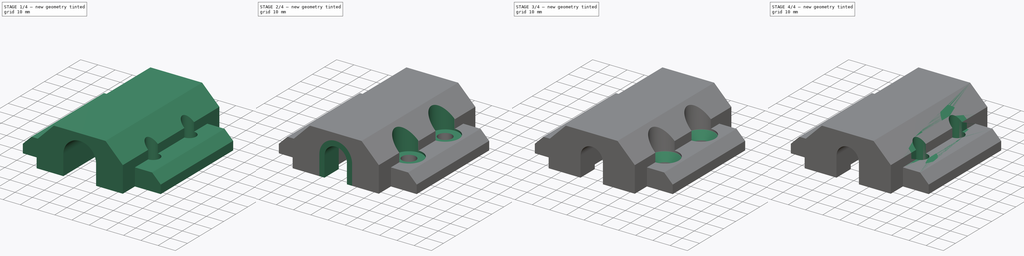
[diagram: build sequence overview — one tinted view per stage of 4, left to right]
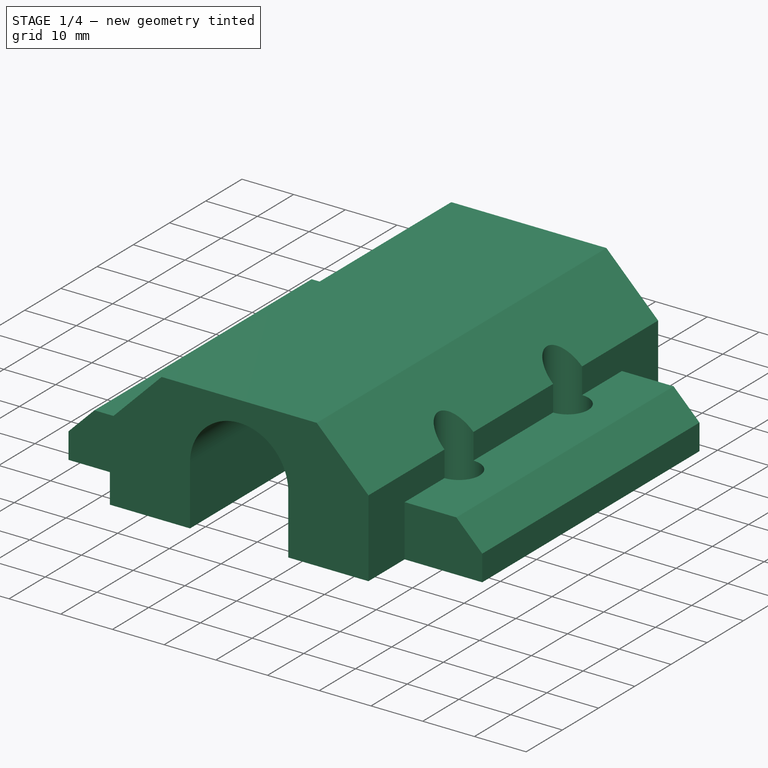
[diagram: stage 1 of 4 — iso view after this stage's code; geometry added in this stage tinted green]
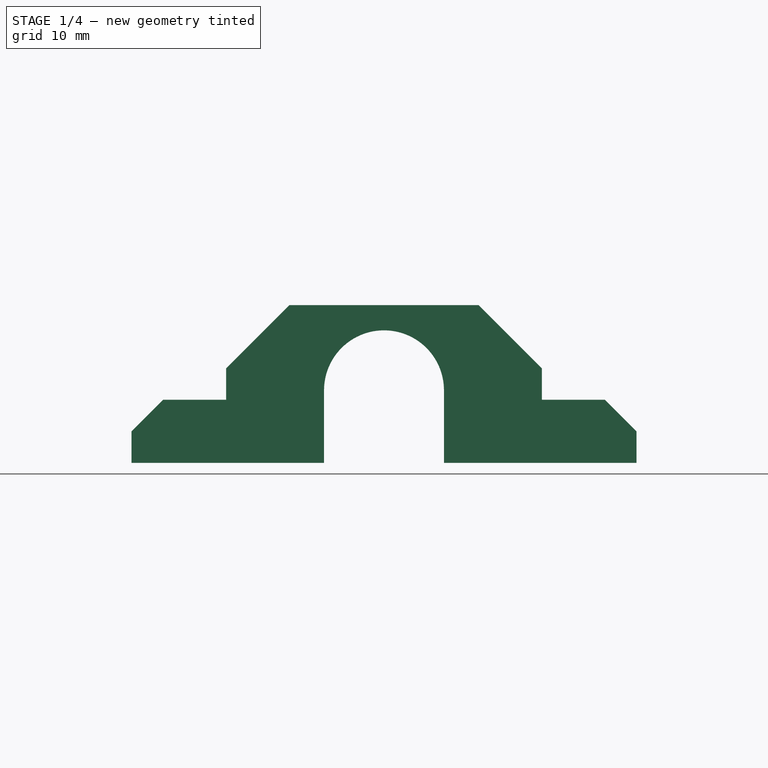
[diagram: stage 1 of 4 — front view after this stage's code; geometry added in this stage tinted green]
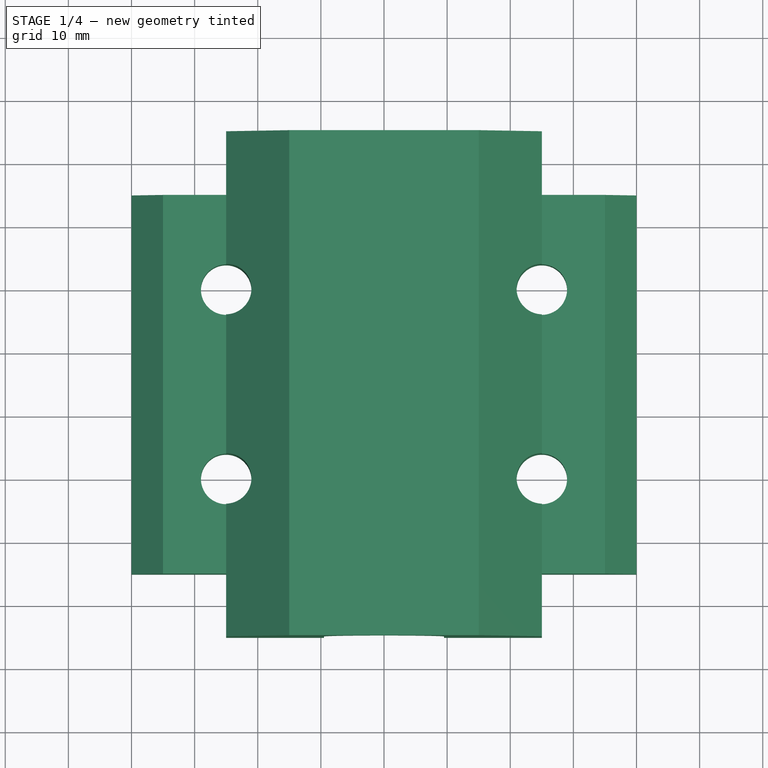
[diagram: stage 1 of 4 — top view after this stage's code; geometry added in this stage tinted green]
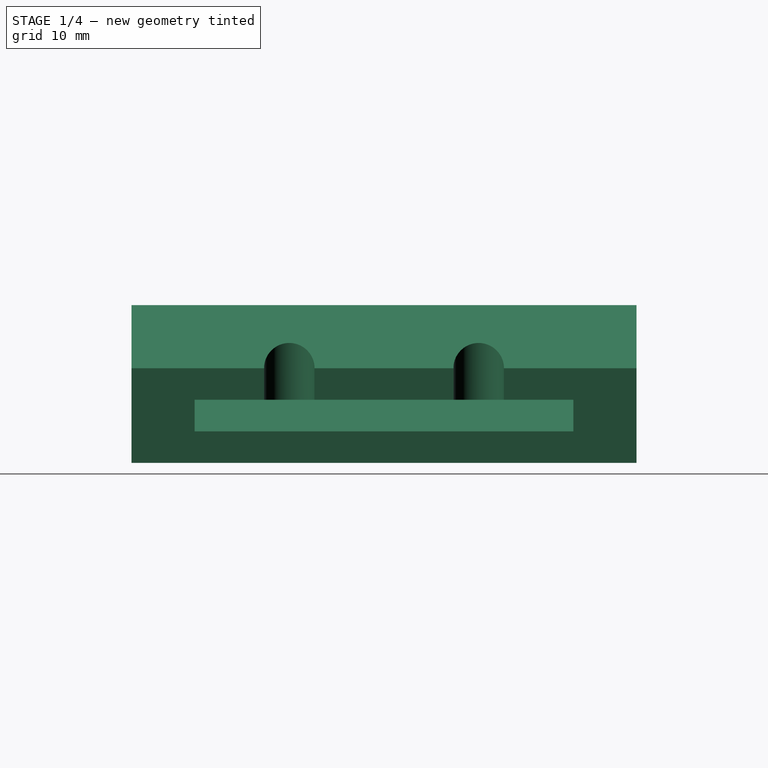
[diagram: stage 1 of 4 — right view after this stage's code; geometry added in this stage tinted green]
FCSTD DOCUMENT  (FreeCAD 0.16R6712 (Git))
Label: TestRig_bearing-housing
License: All rights reserved
LicenseURL: http://en.wikipedia.org/wiki/All_rights_reserved
objects: Sketcher::SketchObject×6, PartDesign::Chamfer×4, PartDesign::Pad×3, PartDesign::Pocket×2, PartDesign::LinearPattern×1
note: 21 computed .brp shape members not serialized (recipe doc carries the construction recipe); baked Part::Feature solids carry a one-line shape summary decoded from their .brp

FEATURE [Sketcher::SketchObject] Sketch
  sketch-geometry (34):
    g0: LineSegment StartX=40 StartY=15 StartZ=0 EndX=40 EndY=-15 EndZ=0
    g1: LineSegment [constr] StartX=40 StartY=-15 StartZ=0 EndX=-40 EndY=-15 EndZ=0
    g2: LineSegment StartX=-40 StartY=-15 StartZ=0 EndX=-40 EndY=15 EndZ=0
    g3: GeomPoint [constr] X=40 Y=0 Z=0
    g4: LineSegment [constr] StartX=9.5 StartY=13.3 StartZ=0 EndX=9.5 EndY=-15 EndZ=0
    g5: LineSegment [constr] StartX=9.5 StartY=-15 StartZ=0 EndX=-9.5 EndY=-15 EndZ=0
    g6: LineSegment [constr] StartX=-9.5 StartY=-15 StartZ=0 EndX=-9.5 EndY=13.3 EndZ=0
    g7: Circle [constr] CenterX=25 CenterY=0 CenterZ=0 NormalX=0 NormalY=0 NormalZ=1 Radius=8
    g8: Circle [constr] CenterX=-25 CenterY=0 CenterZ=0 NormalX=0 NormalY=0 NormalZ=1 Radius=8
    g9: GeomPoint [constr] X=33 Y=0 Z=0
    g10: Circle CenterX=-25 CenterY=0 CenterZ=0 NormalX=0 NormalY=0 NormalZ=1 Radius=4
    g11: Circle CenterX=25 CenterY=0 CenterZ=0 NormalX=0 NormalY=0 NormalZ=1 Radius=4
    g12: GeomPoint [constr] X=-25 Y=0 Z=0
    g13: LineSegment [constr] StartX=-9.5 StartY=13.3 StartZ=0 EndX=9.5 EndY=13.3 EndZ=0
    g14: LineSegment StartX=-40 StartY=15 StartZ=0 EndX=-25 EndY=15 EndZ=0
    g15: LineSegment StartX=-25 StartY=15 StartZ=0 EndX=-25 EndY=25 EndZ=0
    g16: LineSegment StartX=-25 StartY=25 StartZ=0 EndX=25 EndY=25 EndZ=0
    g17: LineSegment StartX=25 StartY=25 StartZ=0 EndX=25 EndY=15 EndZ=0
    g18: LineSegment StartX=25 StartY=15 StartZ=0 EndX=40 EndY=15 EndZ=0
    g19: GeomPoint [constr] X=0 Y=-15 Z=0
    g20: GeomPoint [constr] X=0 Y=25 Z=0
    g21: LineSegment StartX=-40 StartY=-15 StartZ=0 EndX=-40 EndY=-45 EndZ=0
    g22: LineSegment StartX=-40 StartY=-45 StartZ=0 EndX=-25 EndY=-45 EndZ=0
    g23: LineSegment StartX=-25 StartY=-45 StartZ=0 EndX=-25 EndY=-55 EndZ=0
    g24: LineSegment StartX=-25 StartY=-55 StartZ=0 EndX=25 EndY=-55 EndZ=0
    g25: LineSegment StartX=25 StartY=-55 StartZ=0 EndX=25 EndY=-45 EndZ=0
    g26: LineSegment StartX=25 StartY=-45 StartZ=0 EndX=40 EndY=-45 EndZ=0
    g27: LineSegment StartX=40 StartY=-45 StartZ=0 EndX=40 EndY=-15 EndZ=0
    g28: LineSegment [constr] StartX=25 StartY=0 StartZ=0 EndX=-25 EndY=0 EndZ=0
    g29: LineSegment [constr] StartX=-25 StartY=0 StartZ=0 EndX=-25 EndY=-30 EndZ=0
    g30: LineSegment [constr] StartX=-25 StartY=-30 StartZ=0 EndX=25 EndY=-30 EndZ=0
    g31: LineSegment [constr] StartX=25 StartY=-30 StartZ=0 EndX=25 EndY=0 EndZ=0
    g32: Circle CenterX=-25 CenterY=-30 CenterZ=0 NormalX=0 NormalY=0 NormalZ=1 Radius=4
    g33: Circle CenterX=25 CenterY=-30 CenterZ=0 NormalX=0 NormalY=0 NormalZ=1 Radius=4
  constraints (90):
    c: Coincident(g0,g1)
    c: Coincident(g1,g2)
    c: Horizontal(g1)
    c: Vertical(g0)
    c: Vertical(g2)
    c: PointOnObject(g3,g0)
    c: Symmetric(g0,g0,g3)
    c: PointOnObject(g3,g-1)
    c: DistanceX(g2,g0) = 80
    c: DistanceY(g0,g0) = 30
    c: Coincident(g5,g6)
    c: Horizontal(g5)
    c: Vertical(g4)
    c: Vertical(g6)
    c: DistanceX(g6,g4) = 19
    c: PointOnObject(g7,g-1)
    c: PointOnObject(g8,g-1)
    c: Radius(g7) = 8
    c: Equal(g8,g7)
    c: PointOnObject(g9,g7)
    c: PointOnObject(g9,g-1)
    c: DistanceX(g9,g3) = 7
    c: Symmetric(g7,g8,g-1)
    c: Coincident(g10,g8)
    c: Coincident(g11,g7)
    c: Radius(g11) = 4
    c: Equal(g11,g10)
    c: Coincident(g12,g8)
    c: Coincident(g5,g4)
    c: Coincident(g13,g6)
    c: Coincident(g13,g4)
    c: Horizontal(g13)
    c: Horizontal(g14)
    c: Coincident(g14,g15)
    c: Vertical(g15)
    c: Coincident(g15,g16)
    c: Horizontal(g16)
    c: Coincident(g16,g17)
    c: Coincident(g17,g18)
    c: Horizontal(g18)
    c: Vertical(g17)
    c: DistanceX(g16,g16) = 50
    c: Coincident(g0,g18)
    c: PointOnObject(g19,g5)
    c: Symmetric(g5,g4,g19)
    c: PointOnObject(g19,g-2)
    c: PointOnObject(g20,g16)
    c: Symmetric(g15,g16,g20)
    c: PointOnObject(g20,g-2)
    c: DistanceY(g4,g4) = 28.3
    c: PointOnObject(g19,g1)
    c: DistanceY(g17,g17) = 10
    c: Coincident(g14,g2)
    c: Equal(g15,g17)
    c: Equal(g18,g14)
    c: Coincident(g1,g21)
    c: Vertical(g21)
    c: Coincident(g21,g22)
    c: Horizontal(g22)
    c: Coincident(g22,g23)
    c: Vertical(g23)
    c: Coincident(g23,g24)
    c: Horizontal(g24)
    c: Coincident(g24,g25)
    c: Vertical(g25)
    c: Coincident(g25,g26)
    c: Horizontal(g26)
    c: Coincident(g26,g27)
    c: Coincident(g27,g0)
    c: Vertical(g27)
    c: DistanceY(g27,g27) = 30
    c: Equal(g17,g25)
    c: Equal(g22,g14)
    c: Equal(g23,g15)
    c: Equal(g24,g16)
    c: Coincident(g28,g29)
    c: Coincident(g29,g30)
    c: Coincident(g30,g31)
    c: Coincident(g31,g28)
    c: Horizontal(g28)
    c: Horizontal(g30)
    c: Vertical(g29)
    c: Vertical(g31)
    c: Coincident(g28,g7)
    c: Coincident(g8,g28)
    c: Coincident(g32,g29)
    c: Coincident(g33,g30)
    c: Equal(g33,g11)
    c: Equal(g11,g32)
    c: DistanceY(g29,g29) = 30
FEATURE [PartDesign::Pad] Pad
  Length = 25
  Length2 = 100
  Sketch = -> Sketch
  Type = 0
FEATURE [Sketcher::SketchObject] Sketch001
  ExternalGeometry = -> [Pad]
  Placement = pos=(0,15,0) rot=(0,0.707107,0.707107;3.14159rad)
  Support = -> Pad [Face2]
  sketch-geometry (17):
    g0: ArcOfCircle CenterX=0 CenterY=11.5 CenterZ=0 NormalX=0 NormalY=0 NormalZ=1 Radius=9.5 StartAngle=6.28319 EndAngle=9.42478
    g1: LineSegment StartX=-9.5 StartY=11.5 StartZ=0 EndX=-9.5 EndY=0 EndZ=0
    g2: LineSegment StartX=-40 StartY=5 StartZ=0 EndX=-35 EndY=10 EndZ=0
    g3: LineSegment StartX=-35 StartY=10 StartZ=0 EndX=-25 EndY=10 EndZ=0
    g4: LineSegment StartX=-25 StartY=10 StartZ=0 EndX=-25 EndY=15 EndZ=0
    g5: LineSegment StartX=-25 StartY=15 StartZ=0 EndX=-15 EndY=25 EndZ=0
    g6: LineSegment StartX=-40 StartY=5 StartZ=0 EndX=-40 EndY=25 EndZ=0
    g7: LineSegment StartX=-40 StartY=25 StartZ=0 EndX=-15 EndY=25 EndZ=0
    g8: LineSegment StartX=-9.5 StartY=0 StartZ=0 EndX=0 EndY=0 EndZ=0
    g9: LineSegment StartX=0 StartY=0 StartZ=0 EndX=9.5 EndY=0 EndZ=0
    g10: LineSegment StartX=9.5 StartY=0 StartZ=0 EndX=9.5 EndY=11.5 EndZ=0
    g11: LineSegment StartX=40 StartY=5 StartZ=0 EndX=35 EndY=10 EndZ=0
    g12: LineSegment StartX=35 StartY=10 StartZ=0 EndX=25 EndY=10 EndZ=0
    g13: LineSegment StartX=25 StartY=10 StartZ=0 EndX=25 EndY=15 EndZ=0
    g14: LineSegment StartX=25 StartY=15 StartZ=0 EndX=15 EndY=25 EndZ=0
    g15: LineSegment StartX=40 StartY=5 StartZ=0 EndX=40 EndY=25 EndZ=0
    g16: LineSegment StartX=40 StartY=25 StartZ=0 EndX=15 EndY=25 EndZ=0
  constraints (51):
    c: PointOnObject(g0,g-2)
    c: Radius(g0) = 9.5
    c: PointOnObject(g1,g-1)
    c: Tangent(g1,g0)
    c: Vertical(g1)
    c: Coincident(g0,g1)
    c: Coincident(g2,g3)
    c: Horizontal(g3)
    c: Vertical(g4)
    c: Coincident(g4,g5)
    c: DistanceX(g2,g2) = 5
    c: DistanceY(g2,g2) = 5
    c: DistanceY(g-3,g2) = 5
    c: DistanceX(g2,g5) = 20
    c: Coincident(g6,g2)
    c: Vertical(g6)
    c: Coincident(g7,g6)
    c: Coincident(g7,g5)
    c: Coincident(g8,g1)
    c: Coincident(g8,g-1)
    c: DistanceY(g6,g6) = 20
    c: Horizontal(g7)
    c: DistanceX(g2,g4) = 10
    c: Coincident(g3,g4)
    c: DistanceY(g-1,g0) = 11.5
    c: Coincident(g9,g-1)
    c: Horizontal(g9)
    c: Coincident(g10,g9)
    c: Vertical(g10)
    c: Coincident(g10,g0)
    c: DistanceX(g6,g-1) = 40
    c: Equal(g10,g1)
    c: Angle(g5) = 0.785398
    c: Coincident(g11,g12)
    c: Horizontal(g12)
    c: Vertical(g13)
    c: Coincident(g13,g14)
    c: Coincident(g15,g11)
    c: Vertical(g15)
    c: Coincident(g16,g15)
    c: Coincident(g16,g14)
    c: Horizontal(g16)
    c: Coincident(g12,g13)
    c: Angle(g14) = 2.35619
    c: DistanceX(g12,g12) = 10
    c: DistanceY(g15,g15) = 20
    c: DistanceX(g14,g11) = 20
    c: DistanceY(g11,g11) = 5
    c: DistanceX(g11,g11) = 5
    c: DistanceY(g-1,g11) = 5
    c: DistanceX(g-1,g11) = 40
FEATURE [PartDesign::Pocket] Pocket
  Length = 5
  Midplane = true
  Sketch = -> Sketch001
  Type = 1
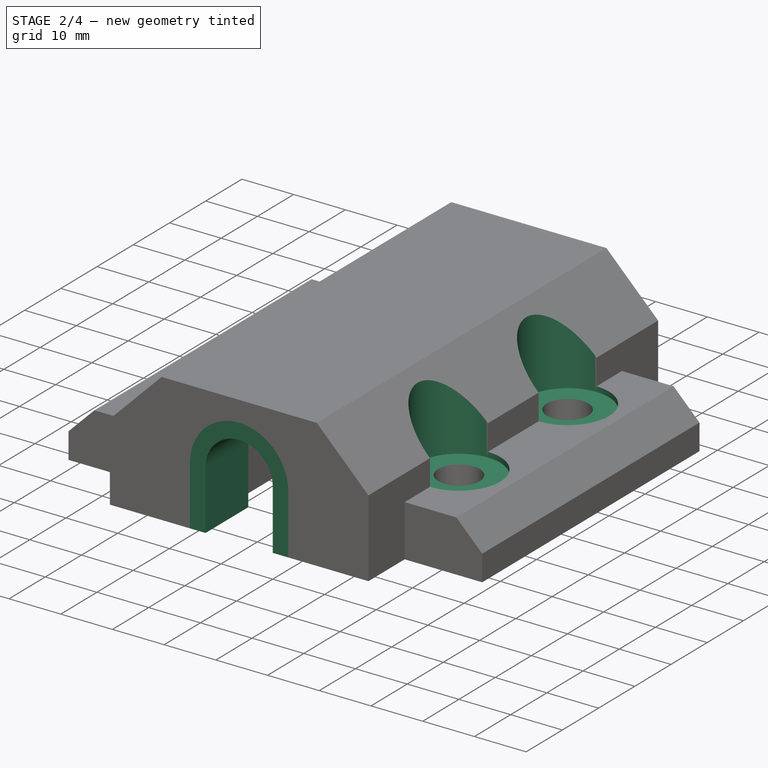
[diagram: stage 2 of 4 — iso view after this stage's code; geometry added in this stage tinted green]
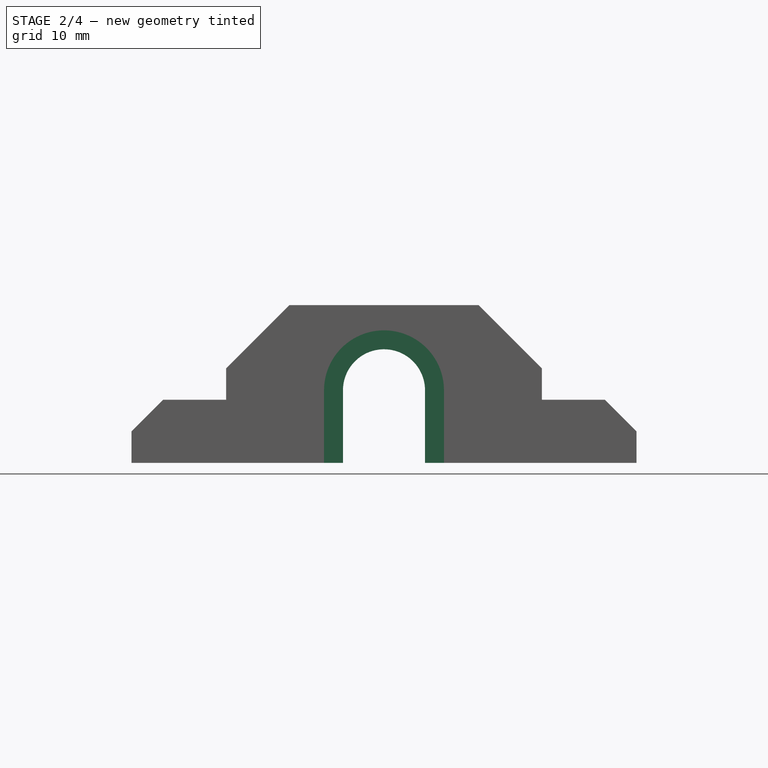
[diagram: stage 2 of 4 — front view after this stage's code; geometry added in this stage tinted green]
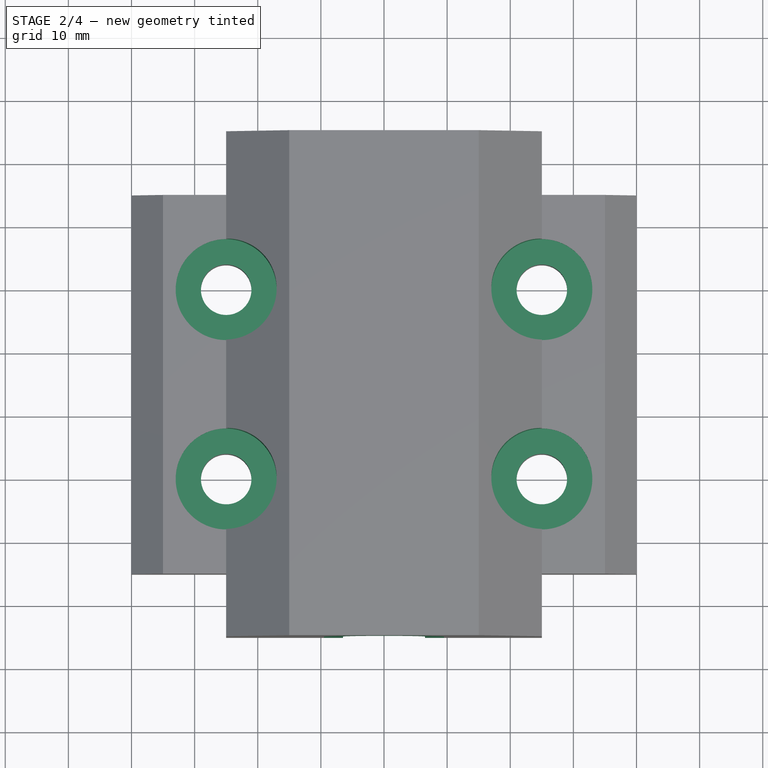
[diagram: stage 2 of 4 — top view after this stage's code; geometry added in this stage tinted green]
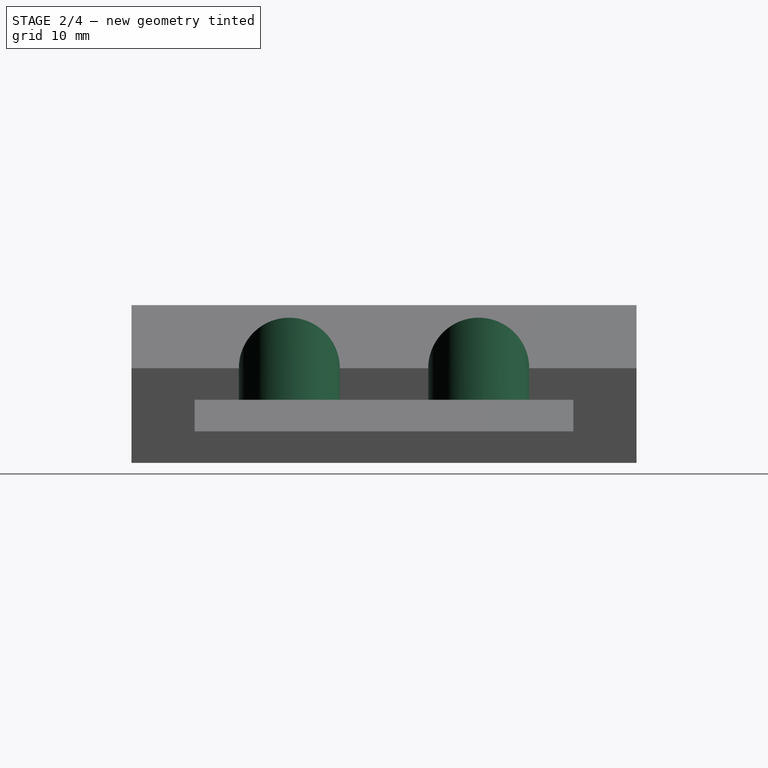
[diagram: stage 2 of 4 — right view after this stage's code; geometry added in this stage tinted green]
FEATURE [Sketcher::SketchObject] Sketch003
  ExternalGeometry = -> [Pocket]
  Placement = pos=(0,0,25) rot=(0,0,1;0rad)
  Support = -> Pocket [Face22]
  sketch-geometry (8):
    g0: LineSegment [constr] StartX=-25 StartY=-30 StartZ=0 EndX=25 EndY=-30 EndZ=0
    g1: LineSegment [constr] StartX=25 StartY=-30 StartZ=0 EndX=25 EndY=0 EndZ=0
    g2: LineSegment [constr] StartX=25 StartY=0 StartZ=0 EndX=-25 EndY=0 EndZ=0
    g3: LineSegment [constr] StartX=-25 StartY=0 StartZ=0 EndX=-25 EndY=-30 EndZ=0
    g4: Circle CenterX=-25 CenterY=0 CenterZ=0 NormalX=0 NormalY=0 NormalZ=1 Radius=8
    g5: Circle CenterX=25 CenterY=0 CenterZ=0 NormalX=0 NormalY=0 NormalZ=1 Radius=8
    g6: Circle CenterX=25 CenterY=-30 CenterZ=0 NormalX=0 NormalY=0 NormalZ=1 Radius=8
    g7: Circle CenterX=-25 CenterY=-30 CenterZ=0 NormalX=0 NormalY=0 NormalZ=1 Radius=8
  constraints (18):
    c: Coincident(g0,g1)
    c: Coincident(g1,g2)
    c: Coincident(g2,g3)
    c: Coincident(g3,g0)
    c: Horizontal(g0)
    c: Horizontal(g2)
    c: Vertical(g1)
    c: Vertical(g3)
    c: Coincident(g0,g-4)
    c: Coincident(g1,g-3)
    c: Coincident(g4,g2)
    c: Coincident(g5,g1)
    c: Coincident(g6,g0)
    c: Coincident(g7,g0)
    c: Radius(g5) = 8
    c: Equal(g6,g7)
    c: Equal(g7,g4)
    c: Equal(g4,g5)
FEATURE [PartDesign::Pocket] Pocket001
  Length = 16
  Sketch = -> Sketch003
  Type = 0
FEATURE [Sketcher::SketchObject] Sketch004
  Placement = pos=(0,-55,0) rot=(1,0,0;1.5708rad)
  Support = -> Pocket001 [Face9]
  sketch-geometry (12):
    g0: LineSegment StartX=-9.5 StartY=0 StartZ=0 EndX=-6.5 EndY=0 EndZ=0
    g1: LineSegment StartX=-6.5 StartY=0 StartZ=0 EndX=-6.5 EndY=11.5 EndZ=0
    g2: LineSegment [constr] StartX=-6.5 StartY=11.5 StartZ=0 EndX=-9.5 EndY=11.5 EndZ=0
    g3: LineSegment StartX=-9.5 StartY=11.5 StartZ=0 EndX=-9.5 EndY=0 EndZ=0
    g4: LineSegment [constr] StartX=-6.5 StartY=11.5 StartZ=0 EndX=0 EndY=11.5 EndZ=0
    g5: LineSegment [constr] StartX=0 StartY=11.5 StartZ=0 EndX=6.5 EndY=11.5 EndZ=0
    g6: ArcOfCircle CenterX=0 CenterY=11.5 CenterZ=0 NormalX=0 NormalY=0 NormalZ=1 Radius=6.5 StartAngle=0 EndAngle=3.14159
    g7: LineSegment [constr] StartX=6.5 StartY=11.5 StartZ=0 EndX=9.5 EndY=11.5 EndZ=0
    g8: LineSegment StartX=9.5 StartY=11.5 StartZ=0 EndX=9.5 EndY=0 EndZ=0
    g9: LineSegment StartX=9.5 StartY=0 StartZ=0 EndX=6.5 EndY=0 EndZ=0
    g10: LineSegment StartX=6.5 StartY=0 StartZ=0 EndX=6.5 EndY=11.5 EndZ=0
    g11: ArcOfCircle CenterX=0 CenterY=11.5 CenterZ=0 NormalX=0 NormalY=0 NormalZ=1 Radius=9.5 StartAngle=0 EndAngle=3.14159
  constraints (34):
    c: Coincident(g0,g1)
    c: Coincident(g1,g2)
    c: Coincident(g2,g3)
    c: Coincident(g3,g0)
    c: Horizontal(g0)
    c: Horizontal(g2)
    c: Vertical(g1)
    c: Vertical(g3)
    c: PointOnObject(g0,g-1)
    c: DistanceY(g3,g3) = 11.5
    c: DistanceX(g0,g0) = 3
    c: DistanceX(g0,g-1) = 9.5
    c: Coincident(g4,g1)
    c: Horizontal(g4)
    c: PointOnObject(g4,g-2)
    c: Coincident(g5,g4)
    c: Horizontal(g5)
    c: Coincident(g6,g4)
    c: Coincident(g6,g1)
    c: Coincident(g6,g5)
    c: Coincident(g7,g8)
    c: Coincident(g8,g9)
    c: Coincident(g9,g10)
    c: Coincident(g10,g7)
    c: Horizontal(g7)
    c: Horizontal(g9)
    c: Vertical(g8)
    c: Vertical(g10)
    c: PointOnObject(g8,g-1)
    c: DistanceX(g9,g9) = 3
    c: Coincident(g7,g5)
    c: Coincident(g11,g4)
    c: Coincident(g11,g2)
    c: Coincident(g11,g7)
FEATURE [PartDesign::Pad] Pad002
  Length = 11.78
  Length2 = 100
  Reversed = true
  Sketch = -> Sketch004
  Type = 0
FEATURE [Sketcher::SketchObject] Sketch005
  Placement = pos=(0,-55,0) rot=(1,0,0;1.5708rad)
  Support = -> Pad002 [Face10]
  sketch-geometry (11):
    g0: LineSegment StartX=-6.5 StartY=0 StartZ=0 EndX=-9.5 EndY=0 EndZ=0
    g1: LineSegment StartX=-9.5 StartY=0 StartZ=0 EndX=-9.5 EndY=11.5 EndZ=0
    g2: LineSegment [constr] StartX=-9.5 StartY=11.5 StartZ=0 EndX=-6.5 EndY=11.5 EndZ=0
    g3: LineSegment StartX=-6.5 StartY=11.5 StartZ=0 EndX=-6.5 EndY=0 EndZ=0
    g4: LineSegment StartX=6.5 StartY=0 StartZ=0 EndX=9.5 EndY=0 EndZ=0
    g5: LineSegment StartX=9.5 StartY=0 StartZ=0 EndX=9.5 EndY=11.5 EndZ=0
    g6: LineSegment [constr] StartX=9.5 StartY=11.5 StartZ=0 EndX=6.5 EndY=11.5 EndZ=0
    g7: LineSegment StartX=6.5 StartY=11.5 StartZ=0 EndX=6.5 EndY=0 EndZ=0
    g8: LineSegment [constr] StartX=-6.5 StartY=11.5 StartZ=0 EndX=0 EndY=11.5 EndZ=0
    g9: ArcOfCircle CenterX=0 CenterY=11.5 CenterZ=0 NormalX=0 NormalY=0 NormalZ=1 Radius=9.5 StartAngle=0 EndAngle=3.14994
    g10: ArcOfCircle CenterX=0 CenterY=11.5 CenterZ=0 NormalX=0 NormalY=0 NormalZ=1 Radius=6.5 StartAngle=0 EndAngle=3.14159
  constraints (31):
    c: Coincident(g0,g1)
    c: Coincident(g1,g2)
    c: Coincident(g2,g3)
    c: Coincident(g3,g0)
    c: Horizontal(g0)
    c: Horizontal(g2)
    c: Vertical(g1)
    c: Vertical(g3)
    c: PointOnObject(g0,g-1)
    c: DistanceX(g0,g0) = 3
    c: DistanceY(g1,g1) = 11.5
    c: DistanceX(g0,g-1) = 9.5
    c: Coincident(g4,g5)
    c: Coincident(g5,g6)
    c: Coincident(g6,g7)
    c: Coincident(g7,g4)
    c: Horizontal(g4)
    c: Horizontal(g6)
    c: Vertical(g5)
    c: Vertical(g7)
    c: PointOnObject(g4,g-1)
    c: DistanceY(g5,g5) = 11.5
    c: DistanceX(g4,g4) = 3
    c: Coincident(g8,g2)
    c: PointOnObject(g8,g-2)
    c: Horizontal(g8)
    c: Coincident(g9,g8)
    c: Coincident(g9,g5)
    c: Coincident(g10,g8)
    c: Coincident(g10,g2)
    c: Coincident(g10,g6)
FEATURE [PartDesign::LinearPattern] LinearPattern
  Direction = -> Pad002 [Edge76]
  Length = 68.22
  Occurrences = 2
  Originals = -> [Pad002]
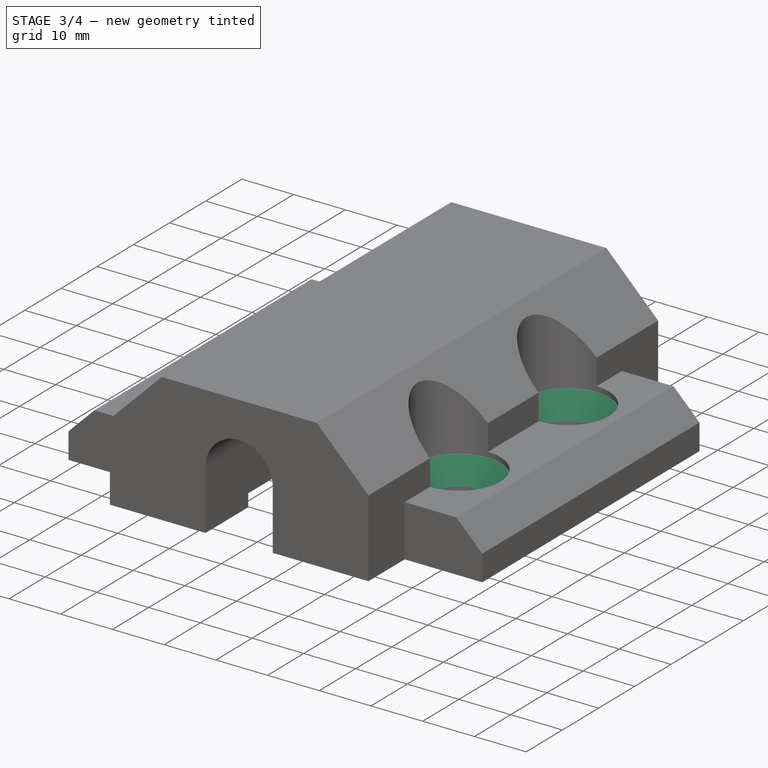
[diagram: stage 3 of 4 — iso view after this stage's code; geometry added in this stage tinted green]
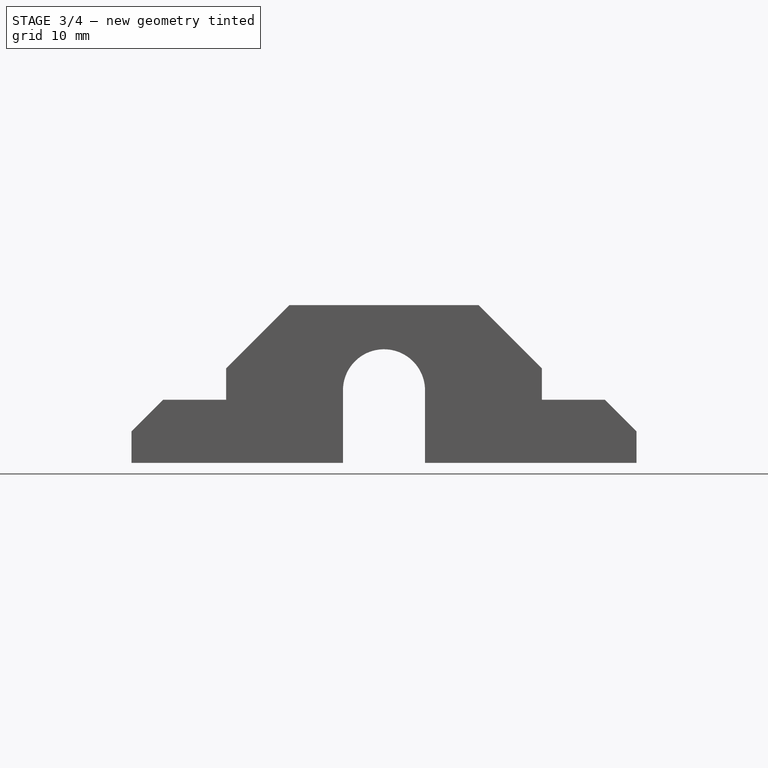
[diagram: stage 3 of 4 — front view after this stage's code; geometry added in this stage tinted green]
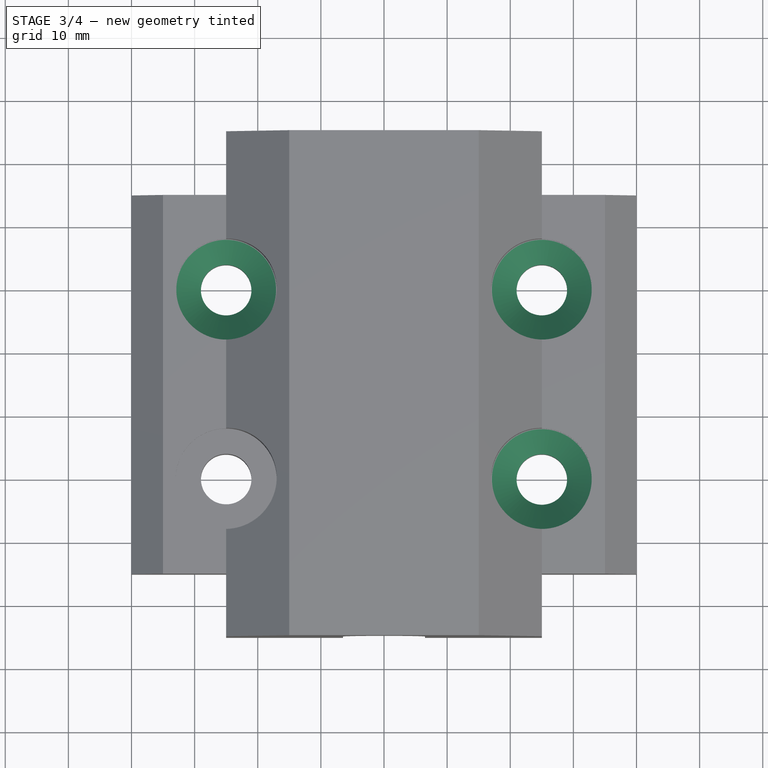
[diagram: stage 3 of 4 — top view after this stage's code; geometry added in this stage tinted green]
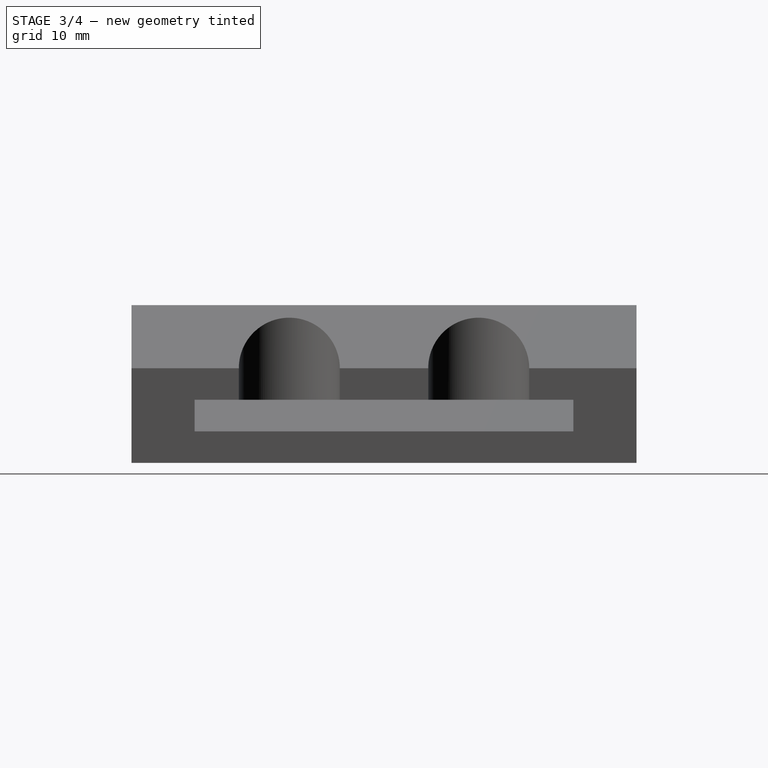
[diagram: stage 3 of 4 — right view after this stage's code; geometry added in this stage tinted green]
FEATURE [PartDesign::Chamfer] Chamfer
  Base = -> LinearPattern [Edge60]
  Size = 3.9
FEATURE [PartDesign::Chamfer] Chamfer001
  Base = -> Chamfer [Edge151]
  Size = 3.9
FEATURE [PartDesign::Chamfer] Chamfer002
  Base = -> Chamfer001 [Edge64]
  Size = 3.9
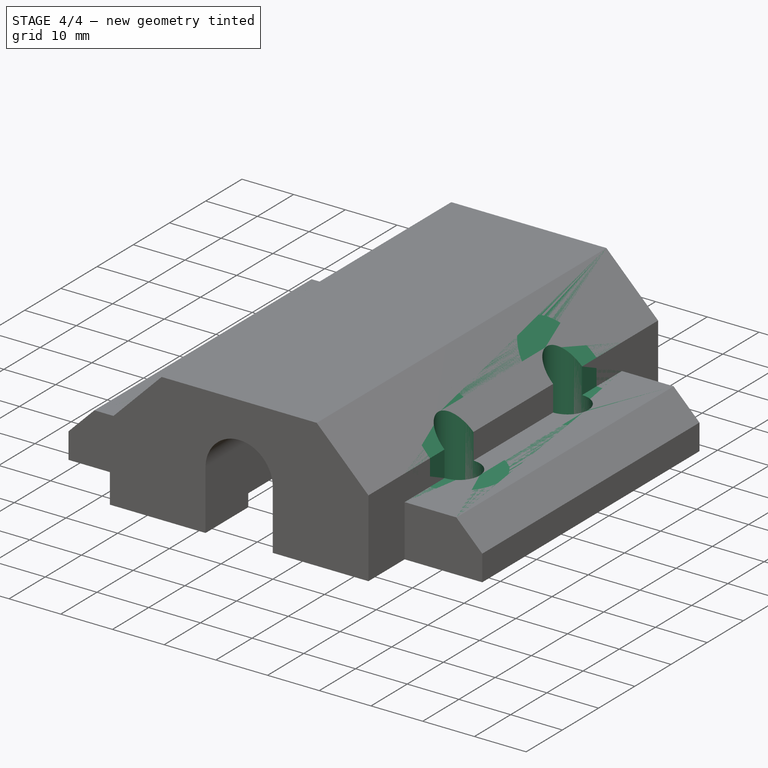
[diagram: stage 4 of 4 — iso view after this stage's code; geometry added in this stage tinted green]
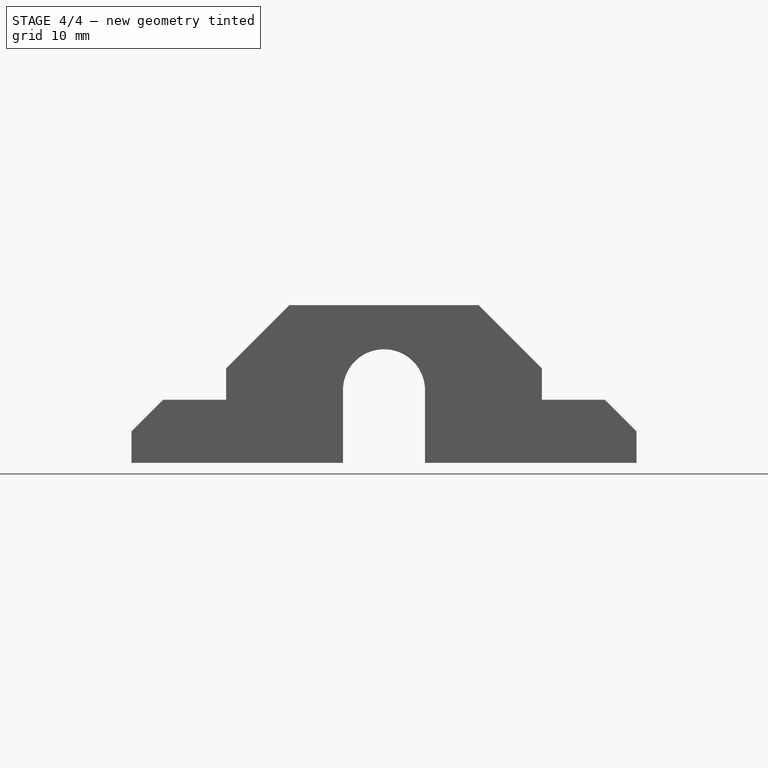
[diagram: stage 4 of 4 — front view after this stage's code; geometry added in this stage tinted green]
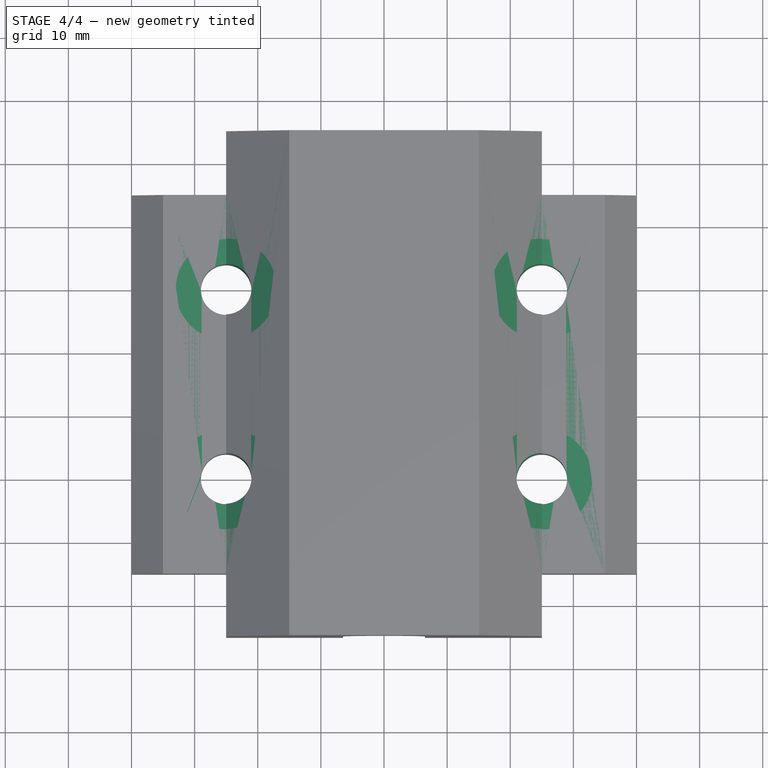
[diagram: stage 4 of 4 — top view after this stage's code; geometry added in this stage tinted green]
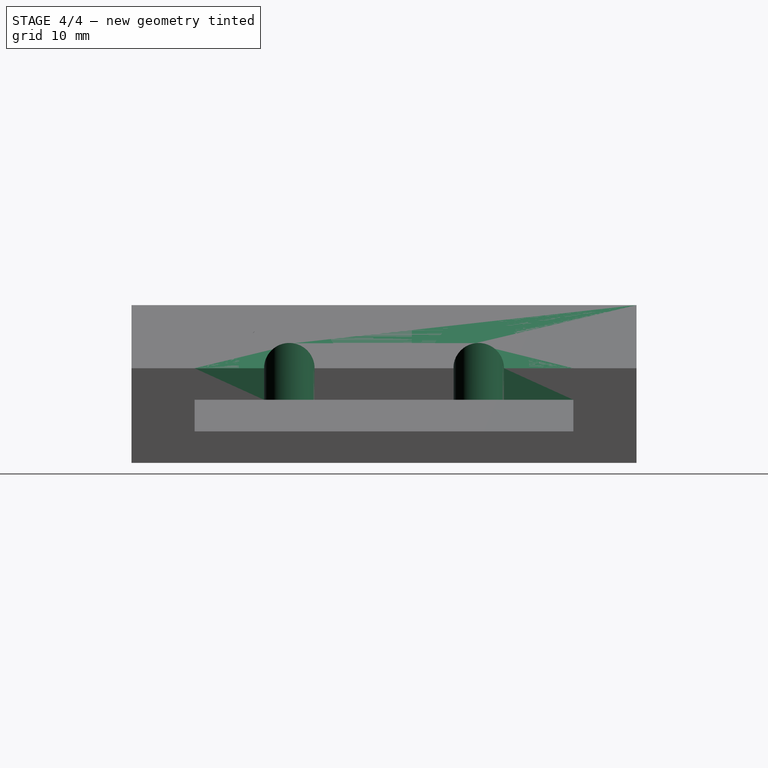
[diagram: stage 4 of 4 — right view after this stage's code; geometry added in this stage tinted green]
FEATURE [Sketcher::SketchObject] Sketch002
  Placement = pos=(0,25,0) rot=(0,0.707107,0.707107;3.14159rad)
  Support = -> Pocket [Face7]
  sketch-geometry (12):
    g0: LineSegment StartX=-9.5 StartY=0 StartZ=0 EndX=-6.5 EndY=0 EndZ=0
    g1: LineSegment StartX=-6.5 StartY=0 StartZ=0 EndX=-6.5 EndY=11.5 EndZ=0
    g2: LineSegment [constr] StartX=-6.5 StartY=11.5 StartZ=0 EndX=-9.5 EndY=11.5 EndZ=0
    g3: LineSegment StartX=-9.5 StartY=11.5 StartZ=0 EndX=-9.5 EndY=0 EndZ=0
    g4: LineSegment StartX=6.5 StartY=0 StartZ=0 EndX=9.5 EndY=0 EndZ=0
    g5: LineSegment StartX=9.5 StartY=0 StartZ=0 EndX=9.5 EndY=11.5 EndZ=0
    g6: LineSegment [constr] StartX=9.5 StartY=11.5 StartZ=0 EndX=6.5 EndY=11.5 EndZ=0
    g7: LineSegment StartX=6.5 StartY=11.5 StartZ=0 EndX=6.5 EndY=0 EndZ=0
    g8: LineSegment [constr] StartX=-6.5 StartY=11.5 StartZ=0 EndX=6.5 EndY=11.5 EndZ=0
    g9: GeomPoint [constr] X=0 Y=11.5 Z=0
    g10: ArcOfCircle CenterX=0 CenterY=11.5 CenterZ=0 NormalX=0 NormalY=0 NormalZ=1 Radius=6.5 StartAngle=0 EndAngle=3.14159
    g11: ArcOfCircle CenterX=0 CenterY=11.5 CenterZ=0 NormalX=0 NormalY=0 NormalZ=1 Radius=9.5 StartAngle=0 EndAngle=3.14159
  constraints (32):
    c: Coincident(g0,g1)
    c: Coincident(g1,g2)
    c: Coincident(g2,g3)
    c: Coincident(g3,g0)
    c: Horizontal(g0)
    c: Horizontal(g2)
    c: Vertical(g1)
    c: Vertical(g3)
    c: PointOnObject(g0,g-1)
    c: Coincident(g4,g5)
    c: Coincident(g5,g6)
    c: Coincident(g6,g7)
    c: Coincident(g7,g4)
    c: Horizontal(g4)
    c: Horizontal(g6)
    c: Vertical(g5)
    c: Vertical(g7)
    c: DistanceX(g0,g0) = 3
    c: DistanceX(g4,g4) = 3
    c: Symmetric(g0,g4,g-1)
    c: DistanceX(g0,g4) = 19
    c: Coincident(g8,g1)
    c: Horizontal(g8)
    c: Coincident(g8,g6)
    c: DistanceY(g3,g3) = 11.5
    c: PointOnObject(g9,g8)
    c: Coincident(g10,g9)
    c: Coincident(g10,g1)
    c: Coincident(g10,g6)
    c: Coincident(g11,g9)
    c: Coincident(g11,g2)
    c: Coincident(g11,g5)
FEATURE [PartDesign::Pad] Pad001
  Length = 11.78
  Length2 = 100
  Reversed = true
  Sketch = -> Sketch002
  Type = 0
FEATURE [PartDesign::Chamfer] Chamfer003
  Base = -> Chamfer002 [Edge153]
  Size = 3.9
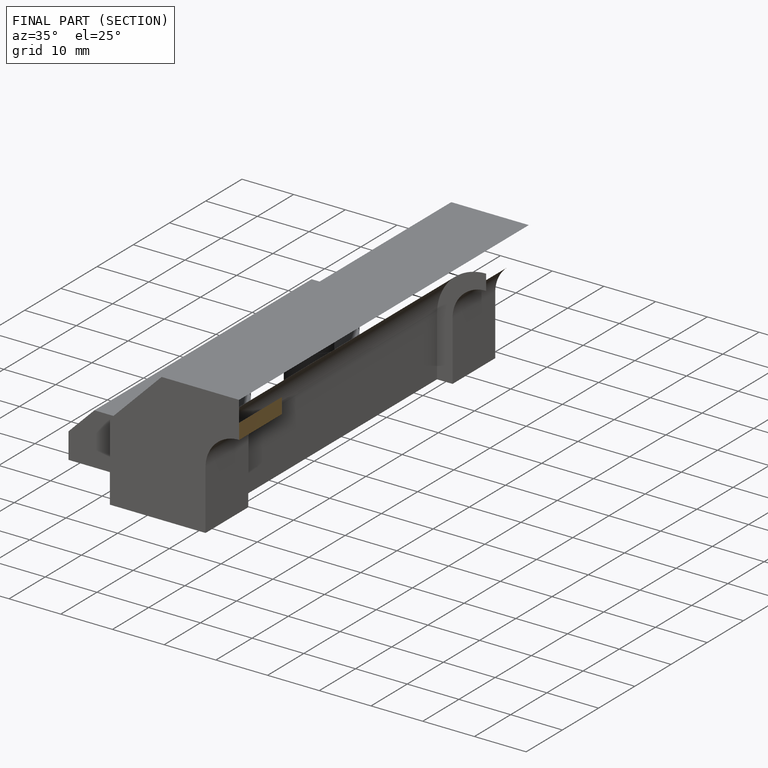
[diagram: finished part — half-section view (interior)]
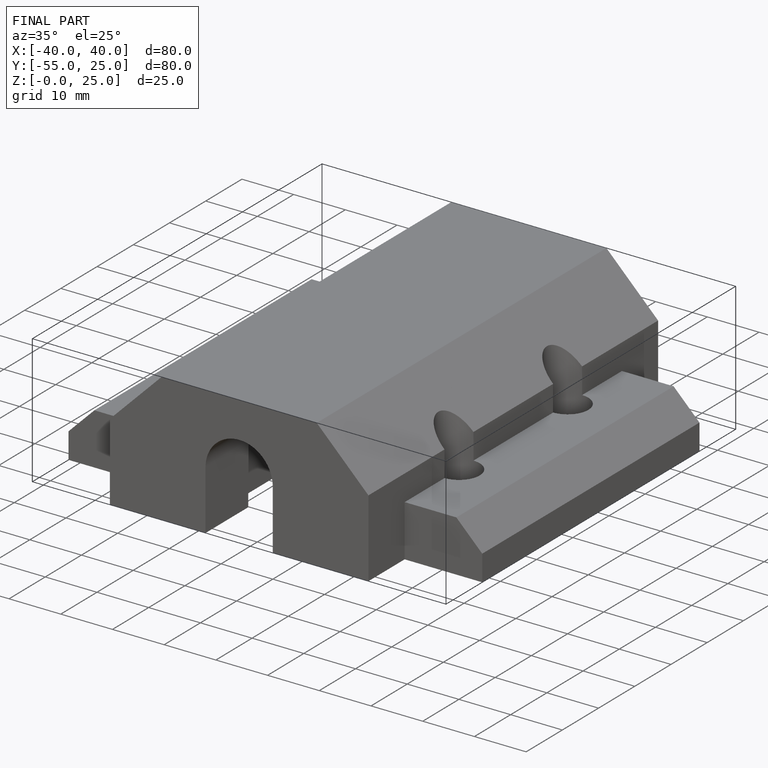
[diagram: finished part — iso view with bounding-box wireframe]
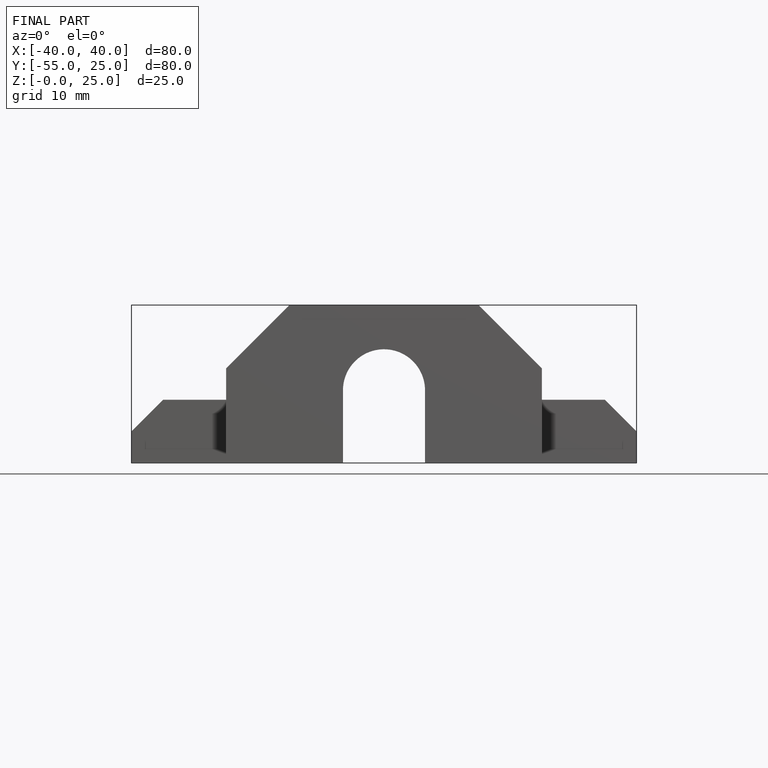
[diagram: finished part — front view with bounding-box wireframe]
